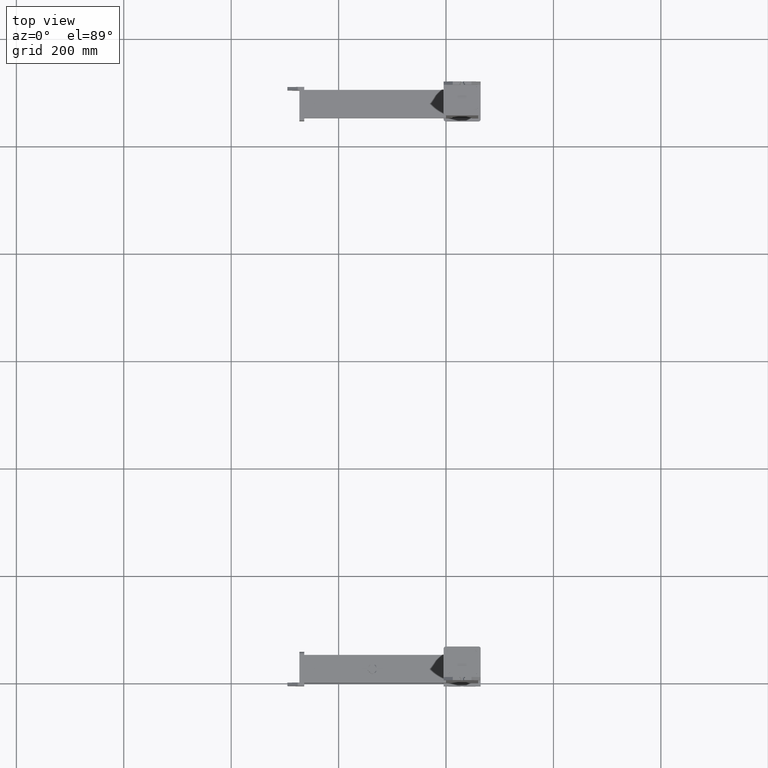
[diagram: clean part render]
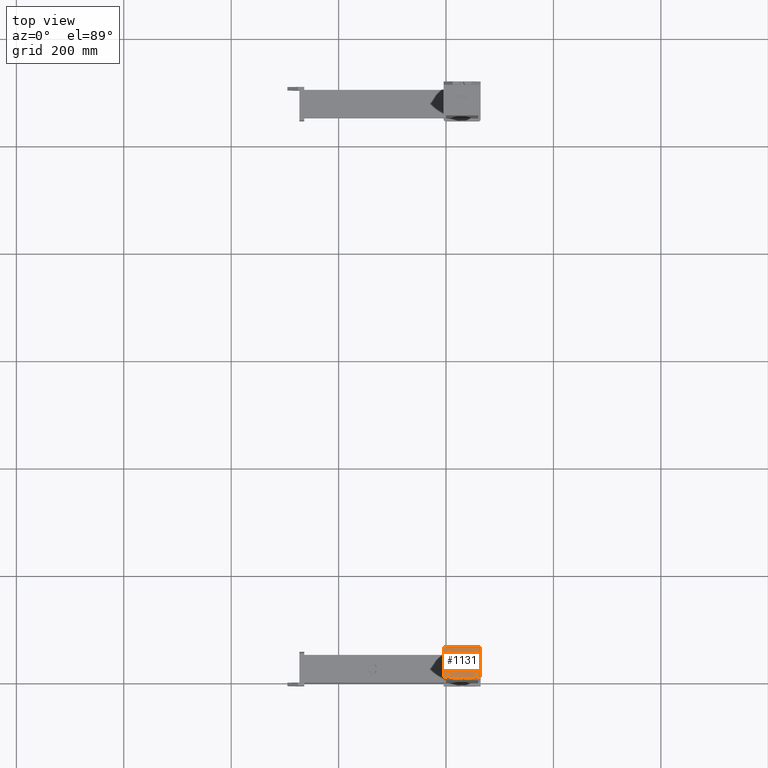
[diagram: same view with one face highlighted and labeled with its STEP entity id]
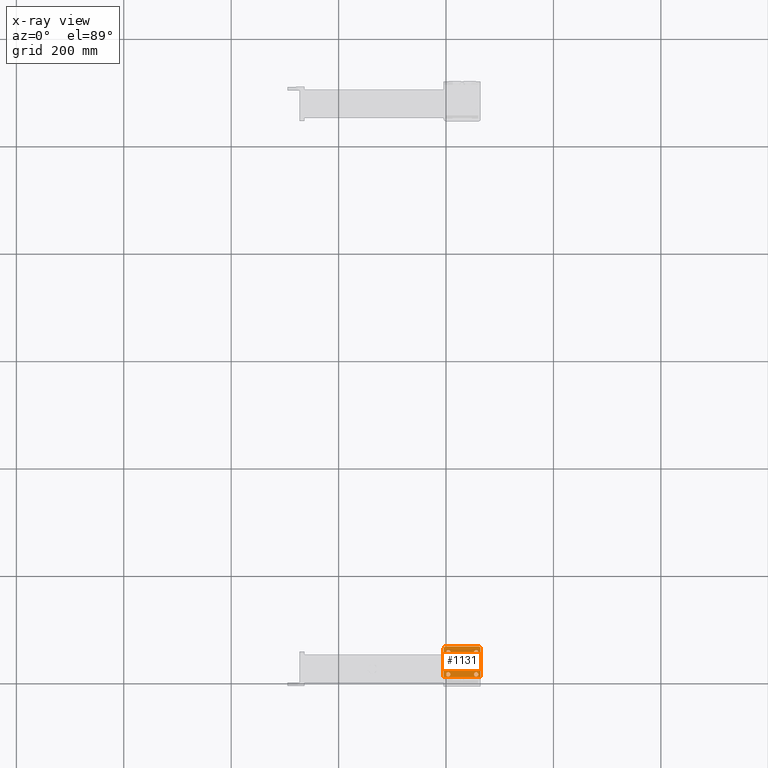
[diagram: x-ray of the same camera — body ghosted, the highlighted face saturated]
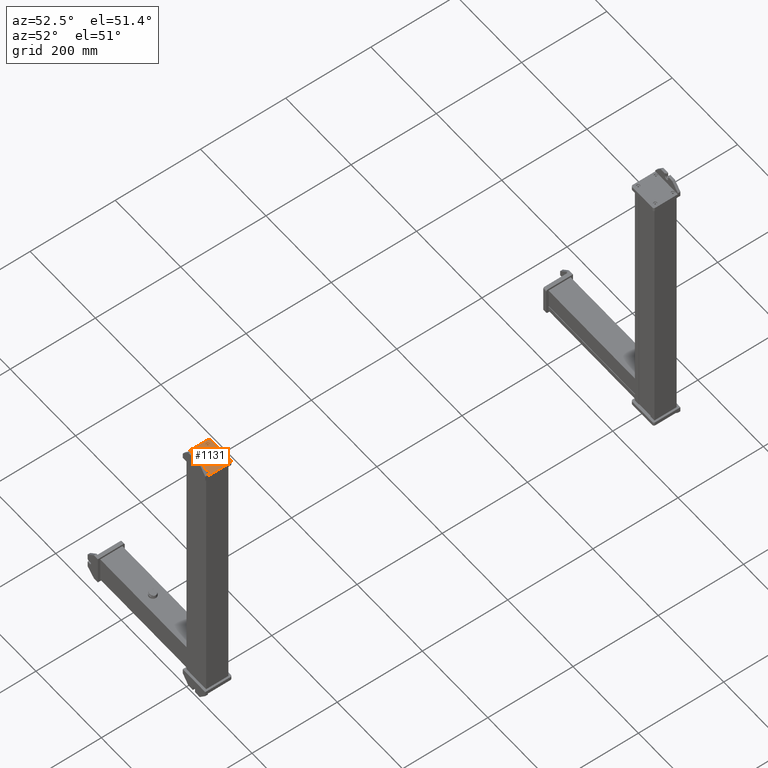
[diagram: same view with one face highlighted and labeled with its STEP entity id]
A machine part, top view. The second image highlights one B-rep face of the part: STEP entity #1131.
The next image is the same camera in x-ray: the body ghosted, the highlighted face saturated — about 0% of this face is hidden behind the body in this view.
A second angle (auxiliary view) of the same face is appended — the face is thin or edge-on in the first view.
In plain terms, the highlighted planar face has unit normal (-0, -0, 1).
Its self-contained STEP definition (entity closure, byte-faithful):
#605=CARTESIAN_POINT('Line Origine',(32.5,9.,34.5)) ;
#609=CARTESIAN_POINT('Vertex',(59.,9.,34.5)) ;
#611=CARTESIAN_POINT('Vertex',(6.,9.,34.5)) ;
#652=CARTESIAN_POINT('Axis2P3D Location',(59.,9.,30.5)) ;
#656=CARTESIAN_POINT('Vertex',(63.,9.,30.5)) ;
#689=CARTESIAN_POINT('Vertex',(59.,9.,-34.5)) ;
#708=CARTESIAN_POINT('Vertex',(6.,9.,-34.5)) ;
#711=CARTESIAN_POINT('Line Origine',(32.5,9.,-34.5)) ;
#730=CARTESIAN_POINT('Line Origine',(63.,9.,0.)) ;
#734=CARTESIAN_POINT('Vertex',(63.,9.,-30.5)) ;
#761=CARTESIAN_POINT('Axis2P3D Location',(59.,9.,-30.5)) ;
#1041=CARTESIAN_POINT('Axis2P3D Location',(63.,9.,0.)) ;
#1046=CARTESIAN_POINT('Line Origine',(6.,9.,0.)) ;
#1059=CARTESIAN_POINT('Axis2P3D Location',(52.5,9.,26.)) ;
#1063=CARTESIAN_POINT('Vertex',(48.5,9.,26.)) ;
#1065=CARTESIAN_POINT('Vertex',(56.5,9.,26.)) ;
#1068=CARTESIAN_POINT('Axis2P3D Location',(52.5,9.,26.)) ;
#1077=CARTESIAN_POINT('Axis2P3D Location',(11.,9.,26.)) ;
#1081=CARTESIAN_POINT('Vertex',(7.,9.,26.)) ;
#1083=CARTESIAN_POINT('Vertex',(15.,9.,26.)) ;
#1086=CARTESIAN_POINT('Axis2P3D Location',(11.,9.,26.)) ;
#1095=CARTESIAN_POINT('Axis2P3D Location',(52.5,9.,-26.)) ;
#1099=CARTESIAN_POINT('Vertex',(48.5,9.,-26.)) ;
#1101=CARTESIAN_POINT('Vertex',(56.5,9.,-26.)) ;
#1104=CARTESIAN_POINT('Axis2P3D Location',(52.5,9.,-26.)) ;
#1113=CARTESIAN_POINT('Axis2P3D Location',(11.,9.,-26.)) ;
#1117=CARTESIAN_POINT('Vertex',(7.,9.,-26.)) ;
#1119=CARTESIAN_POINT('Vertex',(15.,9.,-26.)) ;
#1122=CARTESIAN_POINT('Axis2P3D Location',(11.,9.,-26.)) ;
#606=DIRECTION('Vector Direction',(-1.,-1.34064667125E-016,0.)) ;
#653=DIRECTION('Axis2P3D Direction',(-0.,1.,0.)) ;
#712=DIRECTION('Vector Direction',(-1.,-1.34064667125E-016,0.)) ;
#731=DIRECTION('Vector Direction',(0.,0.,1.)) ;
#762=DIRECTION('Axis2P3D Direction',(0.,1.,0.)) ;
#1042=DIRECTION('Axis2P3D Direction',(-1.24656620309E-016,1.,0.)) ;
#1043=DIRECTION('Axis2P3D XDirection',(-1.,-1.24656620309E-016,0.)) ;
#1047=DIRECTION('Vector Direction',(0.,0.,1.)) ;
#1060=DIRECTION('Axis2P3D Direction',(-1.24656620309E-016,1.,0.)) ;
#1069=DIRECTION('Axis2P3D Direction',(-1.24656620309E-016,1.,0.)) ;
#1078=DIRECTION('Axis2P3D Direction',(-1.24656620309E-016,1.,0.)) ;
#1087=DIRECTION('Axis2P3D Direction',(-1.24656620309E-016,1.,0.)) ;
#1096=DIRECTION('Axis2P3D Direction',(-1.24656620309E-016,1.,0.)) ;
#1105=DIRECTION('Axis2P3D Direction',(-1.24656620309E-016,1.,0.)) ;
#1114=DIRECTION('Axis2P3D Direction',(-1.24656620309E-016,1.,0.)) ;
#1123=DIRECTION('Axis2P3D Direction',(-1.24656620309E-016,1.,0.)) ;
#654=AXIS2_PLACEMENT_3D('Circle Axis2P3D',#652,#653,$) ;
#763=AXIS2_PLACEMENT_3D('Circle Axis2P3D',#761,#762,$) ;
#1044=AXIS2_PLACEMENT_3D('Plane Axis2P3D',#1041,#1042,#1043) ;
#1061=AXIS2_PLACEMENT_3D('Circle Axis2P3D',#1059,#1060,$) ;
#1070=AXIS2_PLACEMENT_3D('Circle Axis2P3D',#1068,#1069,$) ;
#1079=AXIS2_PLACEMENT_3D('Circle Axis2P3D',#1077,#1078,$) ;
#1088=AXIS2_PLACEMENT_3D('Circle Axis2P3D',#1086,#1087,$) ;
#1097=AXIS2_PLACEMENT_3D('Circle Axis2P3D',#1095,#1096,$) ;
#1106=AXIS2_PLACEMENT_3D('Circle Axis2P3D',#1104,#1105,$) ;
#1115=AXIS2_PLACEMENT_3D('Circle Axis2P3D',#1113,#1114,$) ;
#1124=AXIS2_PLACEMENT_3D('Circle Axis2P3D',#1122,#1123,$) ;
#1052=ORIENTED_EDGE('',*,*,#715,.T.) ;
#1053=ORIENTED_EDGE('',*,*,#1050,.T.) ;
#1054=ORIENTED_EDGE('',*,*,#613,.F.) ;
#1055=ORIENTED_EDGE('',*,*,#658,.F.) ;
#1056=ORIENTED_EDGE('',*,*,#736,.F.) ;
#1057=ORIENTED_EDGE('',*,*,#765,.F.) ;
#1074=ORIENTED_EDGE('',*,*,#1067,.F.) ;
#1075=ORIENTED_EDGE('',*,*,#1072,.F.) ;
#1092=ORIENTED_EDGE('',*,*,#1085,.F.) ;
#1093=ORIENTED_EDGE('',*,*,#1090,.F.) ;
#1110=ORIENTED_EDGE('',*,*,#1103,.F.) ;
#1111=ORIENTED_EDGE('',*,*,#1108,.F.) ;
#1128=ORIENTED_EDGE('',*,*,#1121,.F.) ;
#1129=ORIENTED_EDGE('',*,*,#1126,.F.) ;
#1076=FACE_BOUND('',#1073,.T.) ;
#1094=FACE_BOUND('',#1091,.T.) ;
#1112=FACE_BOUND('',#1109,.T.) ;
#1130=FACE_BOUND('',#1127,.T.) ;
#607=VECTOR('Line Direction',#606,1.) ;
#713=VECTOR('Line Direction',#712,1.) ;
#732=VECTOR('Line Direction',#731,1.) ;
#1048=VECTOR('Line Direction',#1047,1.) ;
#1131=ADVANCED_FACE('PartBody',(#1058,#1076,#1094,#1112,#1130),#1045,.T.) ;
#655=CIRCLE('generated circle',#654,4.) ;
#764=CIRCLE('generated circle',#763,4.) ;
#1062=CIRCLE('generated circle',#1061,4.) ;
#1071=CIRCLE('generated circle',#1070,4.) ;
#1080=CIRCLE('generated circle',#1079,4.) ;
#1089=CIRCLE('generated circle',#1088,4.) ;
#1098=CIRCLE('generated circle',#1097,4.) ;
#1107=CIRCLE('generated circle',#1106,4.) ;
#1116=CIRCLE('generated circle',#1115,4.) ;
#1125=CIRCLE('generated circle',#1124,4.) ;
#613=EDGE_CURVE('',#610,#612,#608,.T.) ;
#658=EDGE_CURVE('',#657,#610,#655,.F.) ;
#715=EDGE_CURVE('',#690,#709,#714,.T.) ;
#736=EDGE_CURVE('',#735,#657,#733,.T.) ;
#765=EDGE_CURVE('',#690,#735,#764,.F.) ;
#1050=EDGE_CURVE('',#709,#612,#1049,.T.) ;
#1067=EDGE_CURVE('',#1064,#1066,#1062,.T.) ;
#1072=EDGE_CURVE('',#1066,#1064,#1071,.T.) ;
#1085=EDGE_CURVE('',#1082,#1084,#1080,.T.) ;
#1090=EDGE_CURVE('',#1084,#1082,#1089,.T.) ;
#1103=EDGE_CURVE('',#1100,#1102,#1098,.T.) ;
#1108=EDGE_CURVE('',#1102,#1100,#1107,.T.) ;
#1121=EDGE_CURVE('',#1118,#1120,#1116,.T.) ;
#1126=EDGE_CURVE('',#1120,#1118,#1125,.T.) ;
#1051=EDGE_LOOP('',(#1052,#1053,#1054,#1055,#1056,#1057)) ;
#1073=EDGE_LOOP('',(#1074,#1075)) ;
#1091=EDGE_LOOP('',(#1092,#1093)) ;
#1109=EDGE_LOOP('',(#1110,#1111)) ;
#1127=EDGE_LOOP('',(#1128,#1129)) ;
#1058=FACE_OUTER_BOUND('',#1051,.T.) ;
#608=LINE('Line',#605,#607) ;
#714=LINE('Line',#711,#713) ;
#733=LINE('Line',#730,#732) ;
#1049=LINE('Line',#1046,#1048) ;
#1045=PLANE('Plane',#1044) ;
#610=VERTEX_POINT('',#609) ;
#612=VERTEX_POINT('',#611) ;
#657=VERTEX_POINT('',#656) ;
#690=VERTEX_POINT('',#689) ;
#709=VERTEX_POINT('',#708) ;
#735=VERTEX_POINT('',#734) ;
#1064=VERTEX_POINT('',#1063) ;
#1066=VERTEX_POINT('',#1065) ;
#1082=VERTEX_POINT('',#1081) ;
#1084=VERTEX_POINT('',#1083) ;
#1100=VERTEX_POINT('',#1099) ;
#1102=VERTEX_POINT('',#1101) ;
#1118=VERTEX_POINT('',#1117) ;
#1120=VERTEX_POINT('',#1119) ;